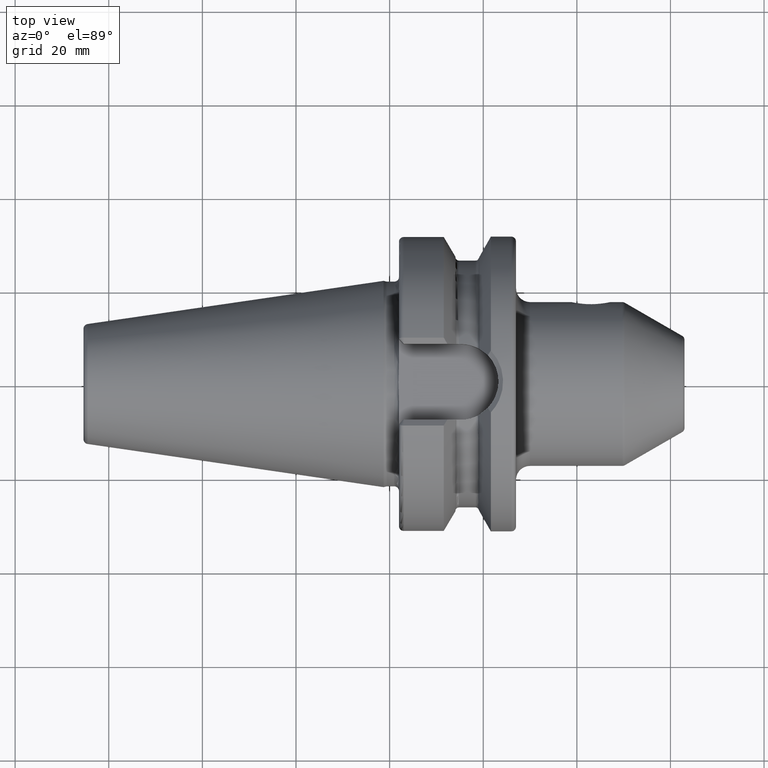
[diagram: clean part render]
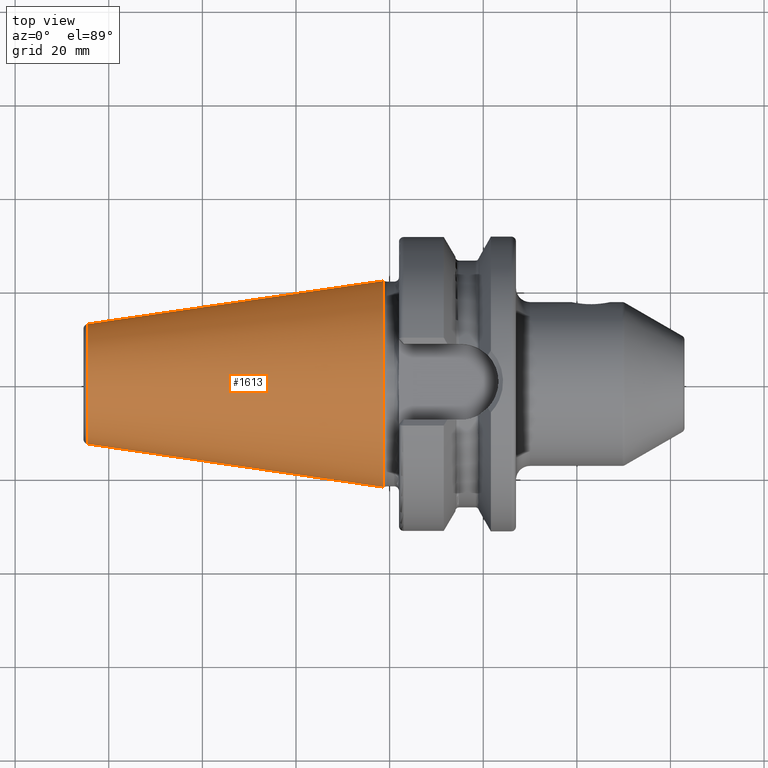
[diagram: same view with one face highlighted and labeled with its STEP entity id]
A machine part, top view. The second image highlights one B-rep face of the part: STEP entity #1613.
In plain terms, the highlighted conical surface has half-angle 8.298 deg.
Its self-contained STEP definition (entity closure, byte-faithful):
#37=CARTESIAN_POINT('',(-6.454431866917E1,0.E0,0.E0));
#38=DIRECTION('',(1.E0,0.E0,0.E0));
#39=DIRECTION('',(0.E0,1.E0,0.E0));
#40=AXIS2_PLACEMENT_3D('',#37,#38,#39);
#42=CARTESIAN_POINT('',(-1.266732031557E0,0.E0,0.E0));
#43=DIRECTION('',(1.E0,0.E0,0.E0));
#44=DIRECTION('',(0.E0,1.E0,0.E0));
#45=AXIS2_PLACEMENT_3D('',#42,#43,#44);
#47=DIRECTION('',(-9.895312636440E-1,-1.443186691705E-1,0.E0));
#48=VECTOR('',#47,6.394703124850E1);
#49=CARTESIAN_POINT('',(-1.266732031557E0,2.204025284980E1,0.E0));
#50=LINE('',#49,#48);
#51=DIRECTION('',(-9.895312636440E-1,1.443186691705E-1,0.E0));
#52=VECTOR('',#51,6.394703124850E1);
#53=CARTESIAN_POINT('',(-1.266732031557E0,-2.204025284980E1,0.E0));
#54=LINE('',#53,#52);
#1294=CARTESIAN_POINT('',(-6.454431866917E1,1.281150240261E1,0.E0));
#1296=VERTEX_POINT('',#1294);
#1298=CARTESIAN_POINT('',(-6.454431866917E1,-1.281150240261E1,0.E0));
#1300=VERTEX_POINT('',#1298);
#1513=CARTESIAN_POINT('',(-1.266732031557E0,2.204025284980E1,0.E0));
#1514=VERTEX_POINT('',#1513);
#1515=CARTESIAN_POINT('',(-1.266732031557E0,-2.204025284980E1,0.E0));
#1516=VERTEX_POINT('',#1515);
#1599=CARTESIAN_POINT('',(-3.290552535036E1,0.E0,0.E0));
#1600=DIRECTION('',(1.E0,0.E0,0.E0));
#1601=DIRECTION('',(0.E0,-1.E0,0.E0));
#1602=AXIS2_PLACEMENT_3D('',#1599,#1600,#1601);
#1603=CONICAL_SURFACE('',#1602,1.742587762621E1,8.297826828206E0);
#1605=ORIENTED_EDGE('',*,*,#1604,.F.);
#1607=ORIENTED_EDGE('',*,*,#1606,.T.);
#1609=ORIENTED_EDGE('',*,*,#1608,.T.);
#1610=ORIENTED_EDGE('',*,*,#1592,.F.);
#1611=EDGE_LOOP('',(#1605,#1607,#1609,#1610));
#1612=FACE_OUTER_BOUND('',#1611,.F.);
#1613=ADVANCED_FACE('',(#1612),#1603,.T.);
#41=CIRCLE('',#40,1.281150240261E1);
#46=CIRCLE('',#45,2.204025284980E1);
#1592=EDGE_CURVE('',#1296,#1300,#41,.T.);
#1604=EDGE_CURVE('',#1514,#1296,#50,.T.);
#1606=EDGE_CURVE('',#1514,#1516,#46,.T.);
#1608=EDGE_CURVE('',#1516,#1300,#54,.T.);